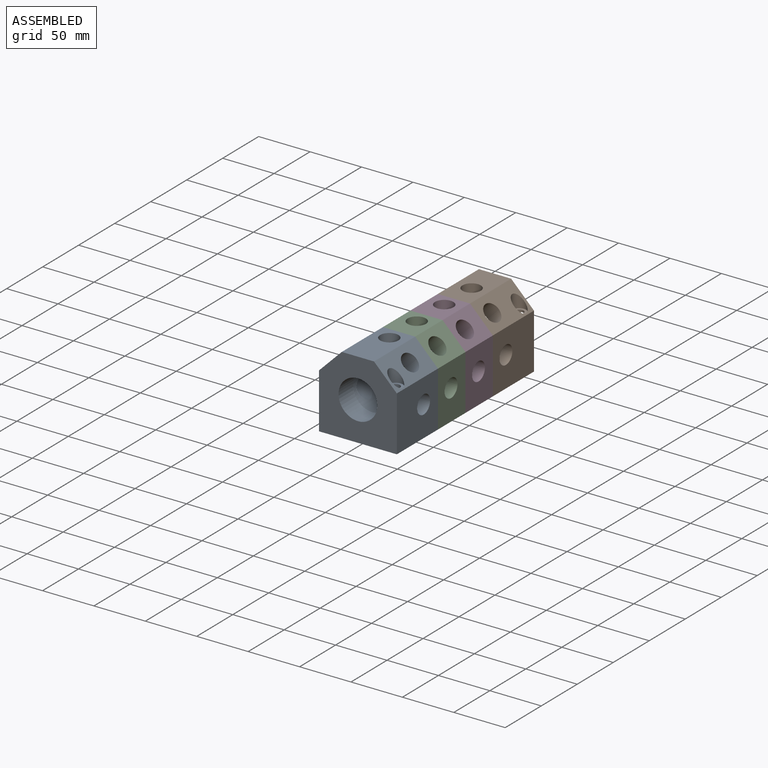
[diagram: assembled view]
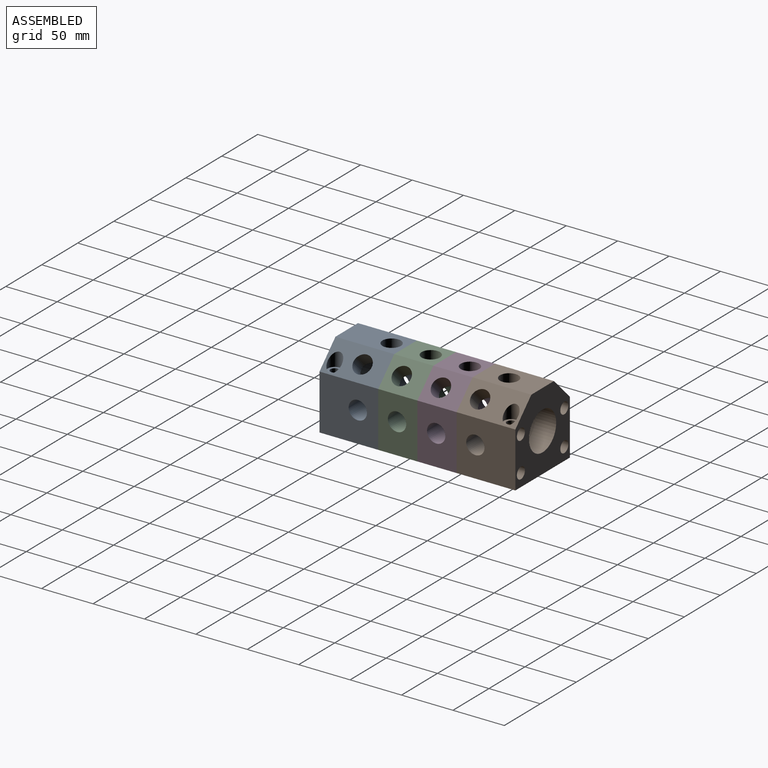
[diagram: assembled view, second angle]
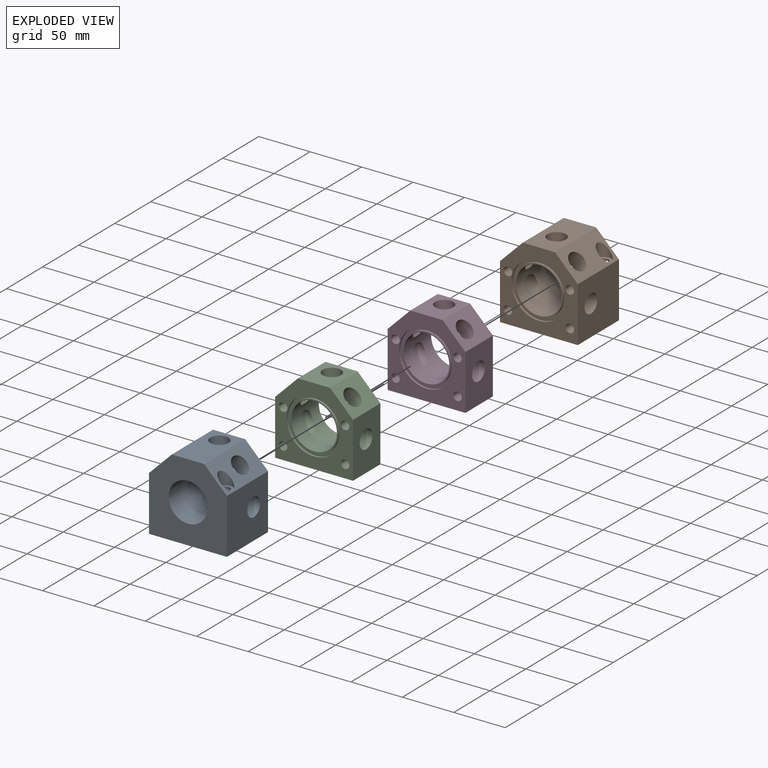
[diagram: exploded view]
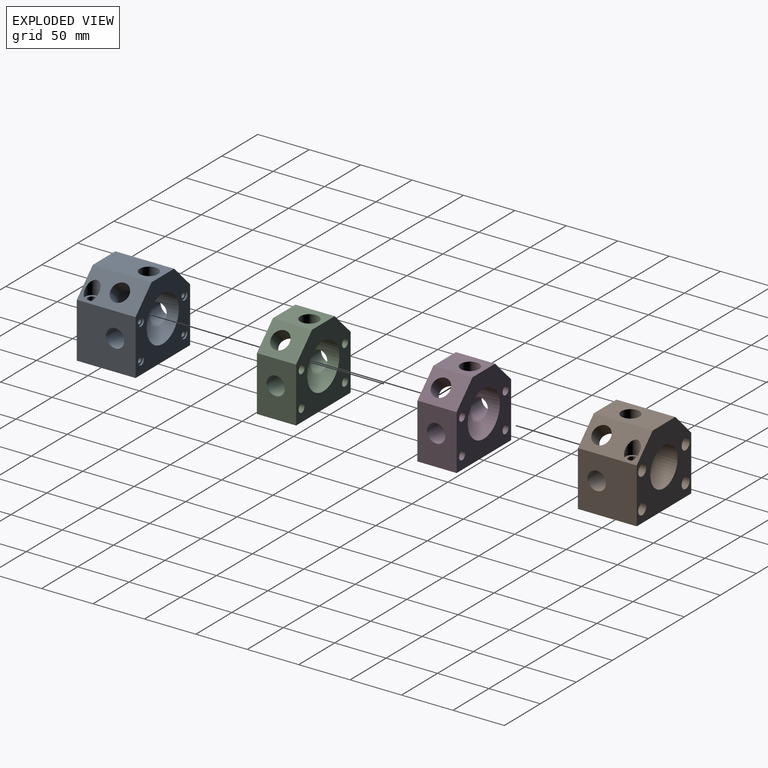
[diagram: exploded view, second angle]
ASSEMBLY  parts=4 mates=3
PART A: 38 faces, bbox 75.7x57.2x75.7 mm
  f0: cylinder r=8.93mm len=17.86mm, axis (0,0,-1), area 981.3mm2, adj f5,f9
  f1: cylinder r=8.93mm len=25mm, axis (0.71,0,-0.71), area 981.3mm2, adj f5,f7
  f2: plane 57.15x53.52mm, normal (1,0,0), area 2808.4mm2, adj f3,f4,f10,f11,f30
  f3: plane 57.15x22.17mm, normal (0.71,0,0.71), area 1339.1mm2, adj f2,f9,f10,f11,f29,f36
  f4: plane 75.69x57.15mm, normal (0,0,-1), area 4214.1mm2, adj f2,f8,f10,f11,f32,f35
  f5: cylinder r=22.23mm len=44.45mm, axis (0,1,0), area 3539.4mm2, adj f0,f1,f6,f10,f29,f30,f31
  f6: cone r=857.17mm half-angle=59deg, axis (0,-1,0), area 508.5mm2, adj f5,f12
  f7: plane 57.15x22.17mm, normal (-0.71,0,0.71), area 1339.1mm2, adj f1,f8,f9,f10,f11,f33
  f8: plane 57.15x53.52mm, normal (-1,0,0), area 2808.4mm2, adj f4,f7,f10,f11,f31
  f9: plane 57.15x31.35mm, normal (0,0,1), area 1541.4mm2, adj f0,f3,f7,f10,f11
  f10: plane 75.69x75.69mm, normal (0,-1,0), area 3474.5mm2, adj f2,f3,f4,f5,f7,f8,f9,f15
  f11: plane 75.69x75.69mm, normal (0,1,0), area 4121.9mm2, adj f2,f3,f4,f7,f8,f9,f12
  f12: cylinder r=18.85mm len=37.69mm, axis (0,-1,0), area 2391.5mm2, adj f6,f11
  f13: cylinder r=2.5mm len=17.46mm, axis (0,1,0), area 274.5mm2, adj f14,f16
  f14: plane 8.2x8.2mm, normal (0,-1,0), area 33.2mm2, adj f13,f15
  f15: cylinder r=4.1mm len=8.2mm, axis (0,1,0), area 40.9mm2, adj f10,f14
  f16: cone r=857.17mm half-angle=59deg, axis (0,-1,0), area 22.9mm2, adj f13
  f17: cylinder r=2.5mm len=17.46mm, axis (0,1,0), area 274.5mm2, adj f18,f20
  f18: plane 8.2x8.2mm, normal (0,-1,0), area 33.2mm2, adj f17,f19
  f19: cylinder r=4.1mm len=8.2mm, axis (0,1,0), area 40.9mm2, adj f10,f18
  f20: cone r=857.17mm half-angle=59deg, axis (0,-1,0), area 22.9mm2, adj f17
  f21: cylinder r=2.5mm len=17.46mm, axis (0,1,0), area 274.5mm2, adj f22,f24
  f22: plane 8.2x8.2mm, normal (0,-1,0), area 33.2mm2, adj f21,f23
  f23: cylinder r=4.1mm len=8.2mm, axis (0,1,0), area 40.9mm2, adj f10,f22
  f24: cone r=857.17mm half-angle=59deg, axis (0,-1,0), area 22.9mm2, adj f21
  f25: cylinder r=2.5mm len=17.46mm, axis (0,1,0), area 274.5mm2, adj f26,f28
  f26: plane 8.2x8.2mm, normal (0,-1,0), area 33.2mm2, adj f25,f27
  f27: cylinder r=4.1mm len=8.2mm, axis (0,1,0), area 40.9mm2, adj f10,f26
  f28: cone r=857.17mm half-angle=59deg, axis (0,-1,0), area 22.9mm2, adj f25
  f29: cylinder r=8.93mm len=25mm, axis (-0.71,0,-0.71), area 981.3mm2, adj f3,f5
  f30: cylinder r=8.93mm len=23.75mm, axis (-1,0,0), area 1332.3mm2, adj f2,f5
  f31: cylinder r=8.93mm len=23.75mm, axis (-1,0,0), area 1332.3mm2, adj f5,f8
  f32: cylinder r=4.22mm len=54.1mm, axis (0,0,-1), area 1433.3mm2, adj f4,f34
  f33: cylinder r=6.75mm len=13.85mm, axis (0,0,-1), area 301.1mm2, adj f7,f34
  f34: plane 13.49x13.49mm, normal (0,0,1), area 87.2mm2, adj f32,f33
  f35: cylinder r=4.22mm len=54.1mm, axis (0,0,-1), area 1433.3mm2, adj f4,f37
  f36: cylinder r=6.75mm len=13.85mm, axis (0,0,-1), area 301.1mm2, adj f3,f37
  f37: plane 13.49x13.49mm, normal (0,0,1), area 87.2mm2, adj f35,f36
PART B: 50 faces, bbox 75.7x57.2x75.7 mm
  f0: cylinder r=8.93mm len=17.86mm, axis (0,0,-1), area 981.3mm2, adj f28,f33
  f1: cylinder r=8.93mm len=25mm, axis (0.71,0,-0.71), area 981.3mm2, adj f29,f33
  f2: cylinder r=4.22mm len=8.82mm, axis (0,0,-1), area 233.6mm2, adj f3,f27
  f3: cylinder r=5.56mm len=25.4mm, axis (0,-1,0), area 775.5mm2, adj f2,f4,f31,f36
  f4: plane 11.13x11.13mm, normal (0,1,0), area 65.5mm2, adj f3,f7
  f5: cylinder r=4.1mm len=25.4mm, axis (0,1,0), area 654.7mm2, adj f6,f18
  f6: plane 8.2x8.2mm, normal (0,-1,0), area 21.2mm2, adj f5,f7
  f7: cylinder r=3.17mm len=6.35mm, axis (0,1,0), area 126.7mm2, adj f4,f6
  f8: cylinder r=4.1mm len=25.4mm, axis (0,1,0), area 654.7mm2, adj f9,f18
  f9: plane 8.2x8.2mm, normal (0,-1,0), area 21.2mm2, adj f8,f10
  f10: cylinder r=3.17mm len=6.35mm, axis (0,1,0), area 126.7mm2, adj f9,f43
  f11: cylinder r=4.1mm len=25.4mm, axis (0,1,0), area 654.7mm2, adj f12,f18
  f12: plane 8.2x8.2mm, normal (0,-1,0), area 21.2mm2, adj f11,f13
  f13: cylinder r=3.17mm len=6.35mm, axis (0,1,0), area 126.7mm2, adj f12,f44
  f14: cylinder r=4.1mm len=25.4mm, axis (0,1,0), area 654.7mm2, adj f15,f18
  f15: plane 8.2x8.2mm, normal (0,-1,0), area 21.2mm2, adj f14,f16
  f16: cylinder r=3.17mm len=6.35mm, axis (0,1,0), area 126.7mm2, adj f15,f42
  f17: cylinder r=18.85mm len=37.69mm, axis (0,-1,0), area 2391.5mm2, adj f31,f32
  f18: plane 75.69x75.69mm, normal (0,-1,0), area 2791.7mm2, adj f5,f8,f11,f14,f23,f25,f26,f27
  f19: cylinder r=5.56mm len=25.4mm, axis (0,-1,0), area 775.5mm2, adj f31,f37,f38,f44
  f20: cylinder r=5.56mm len=25.4mm, axis (0,-1,0), area 775.5mm2, adj f21,f31,f38,f43
  f21: cylinder r=4.22mm len=8.82mm, axis (0,0,-1), area 233.6mm2, adj f20,f27
  f22: cylinder r=23.49mm len=46.99mm, axis (0,1,0), area 300mm2, adj f24,f34
  f23: cylinder r=26.67mm len=53.34mm, axis (0,1,0), area 340.5mm2, adj f18,f24
  f24: plane 53.34x53.34mm, normal (0,-1,0), area 500.4mm2, adj f22,f23
  f25: plane 57.15x53.52mm, normal (1,0,0), area 2808.4mm2, adj f18,f26,f27,f31,f46
  f26: plane 57.15x22.17mm, normal (0.71,0,0.71), area 1339.1mm2, adj f18,f25,f28,f31,f40,f47
  f27: plane 75.69x57.15mm, normal (0,0,-1), area 4214.1mm2, adj f2,f18,f21,f25,f30,f31
  f28: plane 57.15x31.35mm, normal (0,0,1), area 1541.4mm2, adj f0,f18,f26,f29,f31
  f29: plane 57.15x22.17mm, normal (-0.71,0,0.71), area 1339.1mm2, adj f1,f18,f28,f30,f31,f48
  f30: plane 57.15x53.52mm, normal (-1,0,0), area 2808.4mm2, adj f18,f27,f29,f31,f45
  f31: plane 75.69x75.69mm, normal (0,1,0), area 3733mm2, adj f3,f17,f19,f20,f25,f26,f27,f28
  f32: cone r=857.17mm half-angle=59deg, axis (0,-1,0), area 508.5mm2, adj f17,f33
  f33: cylinder r=22.23mm len=44.45mm, axis (0,1,0), area 3539.4mm2, adj f0,f1,f32,f34,f45,f46,f47
  f34: plane 46.99x46.99mm, normal (0,-1,0), area 182.4mm2, adj f22,f33
  f35: cylinder r=4.22mm len=8.43mm, axis (0,0,-1), area 67.3mm2, adj f41,f49
  f36: cylinder r=4.22mm len=26.78mm, axis (0,0,-1), area 671mm2, adj f3,f41
  f37: cylinder r=4.22mm len=8.43mm, axis (0,0,-1), area 67.3mm2, adj f19,f39
  f38: cylinder r=4.22mm len=26.78mm, axis (0,0,-1), area 671mm2, adj f19,f20
  f39: plane 13.49x13.49mm, normal (0,0,1), area 87.2mm2, adj f37,f40
  f40: cylinder r=6.75mm len=13.85mm, axis (0,0,-1), area 301.1mm2, adj f26,f39
  f41: cylinder r=5.56mm len=25.4mm, axis (0,-1,0), area 775.5mm2, adj f31,f35,f36,f42
  f42: plane 11.13x11.13mm, normal (0,1,0), area 65.5mm2, adj f16,f41
  f43: plane 11.13x11.13mm, normal (0,1,0), area 65.5mm2, adj f10,f20
  f44: plane 11.13x11.13mm, normal (0,1,0), area 65.5mm2, adj f13,f19
  f45: cylinder r=8.93mm len=23.75mm, axis (-1,0,0), area 1332.3mm2, adj f30,f33
  f46: cylinder r=8.93mm len=23.75mm, axis (-1,0,0), area 1332.3mm2, adj f25,f33
  f47: cylinder r=8.93mm len=25mm, axis (-0.71,0,-0.71), area 981.3mm2, adj f26,f33
  f48: cylinder r=6.75mm len=13.85mm, axis (0,0,-1), area 301.1mm2, adj f29,f49
  f49: plane 13.49x13.49mm, normal (0,0,1), area 87.2mm2, adj f35,f48
PART C: 22 faces, bbox 75.7x38.1x75.7 mm
  f0: cylinder r=8.93mm len=17.86mm, axis (0,0,-1), area 981.3mm2, adj f10,f18
  f1: cylinder r=8.93mm len=25mm, axis (0.71,0,-0.71), area 981.3mm2, adj f10,f19
  f2: plane 53.34x53.34mm, normal (0,-1,0), area 500.4mm2, adj f3,f4
  f3: cylinder r=26.67mm len=53.34mm, axis (0,1,0), area 340.5mm2, adj f2,f9
  f4: cylinder r=23.49mm len=46.99mm, axis (0,1,0), area 300mm2, adj f2,f11
  f5: cylinder r=4.1mm len=38.1mm, axis (0,1,0), area 982mm2, adj f9,f21
  f6: cylinder r=4.1mm len=38.1mm, axis (0,1,0), area 982mm2, adj f9,f21
  f7: cylinder r=4.1mm len=38.1mm, axis (0,1,0), area 982mm2, adj f9,f21
  f8: cylinder r=4.1mm len=38.1mm, axis (0,1,0), area 982mm2, adj f9,f21
  f9: plane 75.69x75.69mm, normal (0,-1,0), area 2791.7mm2, adj f3,f5,f6,f7,f8,f15,f16,f17
  f10: cylinder r=22.23mm len=44.45mm, axis (0,1,0), area 3982.7mm2, adj f0,f1,f11,f12,f13,f14,f21
  f11: plane 46.99x46.99mm, normal (0,-1,0), area 182.4mm2, adj f4,f10
  f12: cylinder r=8.93mm len=23.75mm, axis (-1,0,0), area 1332.3mm2, adj f10,f15
  f13: cylinder r=8.93mm len=23.75mm, axis (-1,0,0), area 1332.3mm2, adj f10,f20
  f14: cylinder r=8.93mm len=25mm, axis (-0.71,0,-0.71), area 981.3mm2, adj f10,f16
  f15: plane 53.52x38.1mm, normal (1,0,0), area 1788.8mm2, adj f9,f12,f16,f17,f21
  f16: plane 38.1x22.17mm, normal (0.71,0,0.71), area 944.1mm2, adj f9,f14,f15,f18,f21
  f17: plane 75.69x38.1mm, normal (0,0,-1), area 2883.9mm2, adj f9,f15,f20,f21
  f18: plane 38.1x31.35mm, normal (0,0,1), area 944.1mm2, adj f0,f9,f16,f19,f21
  f19: plane 38.1x22.17mm, normal (-0.71,0,0.71), area 944.1mm2, adj f1,f9,f18,f20,f21
  f20: plane 53.52x38.1mm, normal (-1,0,0), area 1788.8mm2, adj f9,f13,f17,f19,f21
  f21: plane 75.69x75.69mm, normal (0,1,0), area 3474.5mm2, adj f5,f6,f7,f8,f10,f15,f16,f17
PART D: same geometry as C
PLACE A rot(axis=(0,0,1),180deg) t=(0,-76.2,0)mm
PLACE B at identity fixed
PLACE C t=(0,-76.2,0)mm
PLACE D t=(0,-38.1,0)mm
MATE fastened C.f10 <-> D.f10  axis (0,1,0) through (0,-38.1,0)mm
MATE fastened A.f5 <-> C.f10  axis (0,1,0) through (0,-76.2,0)mm
MATE fastened D.f10 <-> B.f17  axis (0,1,0) through (0,0,0)mm
